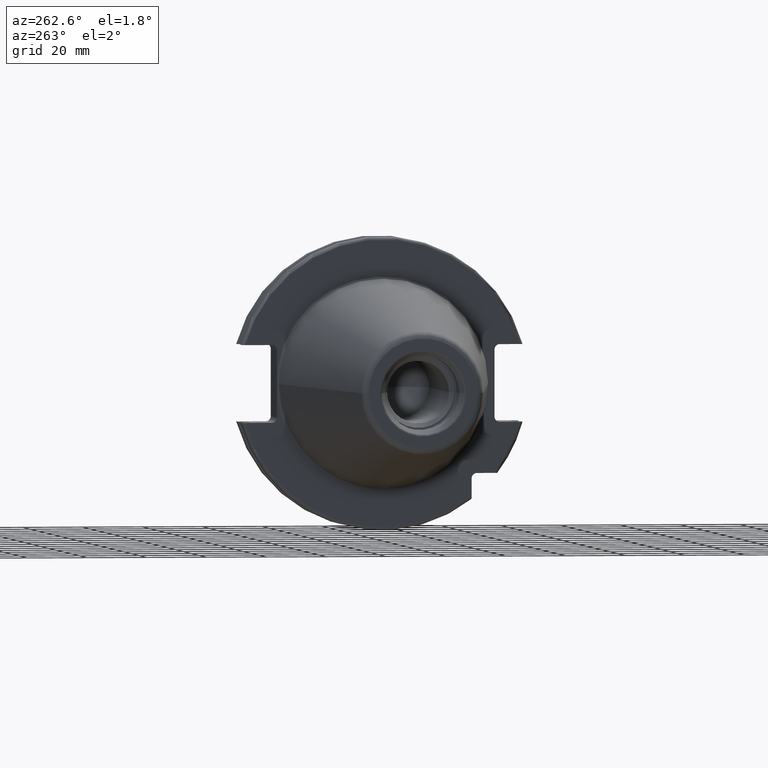
[diagram: clean part render]
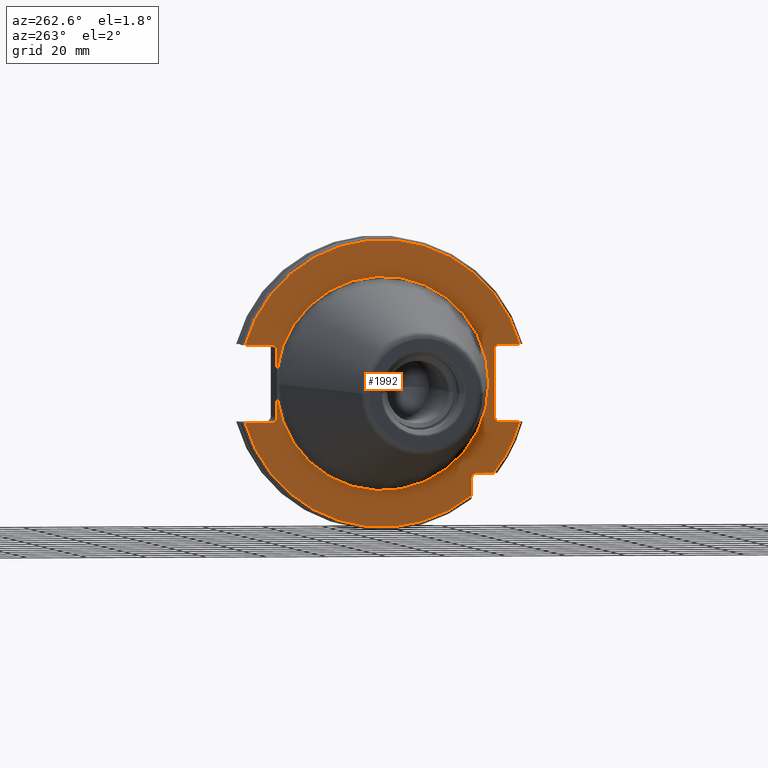
[diagram: same view with one face highlighted and labeled with its STEP entity id]
A machine part, auxiliary view. The second image highlights one B-rep face of the part: STEP entity #1992.
In plain terms, the highlighted planar face has unit normal (1, 0, 0).
Its self-contained STEP definition (entity closure, byte-faithful):
#105=CARTESIAN_POINT('',(3.2E0,3.53E1,-4.414818795828E0));
#117=CARTESIAN_POINT('',(3.2E0,0.E0,0.E0));
#118=DIRECTION('',(-1.E0,0.E0,0.E0));
#119=DIRECTION('',(0.E0,9.922698524245E-1,-1.240989120402E-1));
#120=AXIS2_PLACEMENT_3D('',#117,#118,#119);
#135=CARTESIAN_POINT('',(3.2E0,3.705E1,1.115E1));
#136=DIRECTION('',(1.E0,0.E0,0.E0));
#137=DIRECTION('',(0.E0,0.E0,1.E0));
#138=AXIS2_PLACEMENT_3D('',#135,#136,#137);
#195=CARTESIAN_POINT('',(3.2E0,-3.925E1,-1.115E1));
#196=DIRECTION('',(1.E0,0.E0,0.E0));
#197=DIRECTION('',(0.E0,0.E0,-1.E0));
#198=AXIS2_PLACEMENT_3D('',#195,#196,#197);
#266=CARTESIAN_POINT('',(3.2E0,3.705E1,-1.115E1));
#267=DIRECTION('',(1.E0,0.E0,0.E0));
#268=DIRECTION('',(0.E0,-1.E0,0.E0));
#269=AXIS2_PLACEMENT_3D('',#266,#267,#268);
#271=DIRECTION('',(0.E0,1.E0,0.E0));
#272=VECTOR('',#271,6.711493733886E0);
#273=CARTESIAN_POINT('',(3.2E0,-4.596149373389E1,1.29E1));
#274=LINE('',#273,#272);
#275=DIRECTION('',(0.E0,0.E0,1.E0));
#276=VECTOR('',#275,2.23E1);
#277=CARTESIAN_POINT('',(3.2E0,-3.75E1,-1.115E1));
#278=LINE('',#277,#276);
#279=DIRECTION('',(0.E0,1.E0,0.E0));
#280=VECTOR('',#279,6.711493733886E0);
#281=CARTESIAN_POINT('',(3.2E0,-4.596149373389E1,-1.29E1));
#282=LINE('',#281,#280);
#283=CARTESIAN_POINT('',(3.2E0,0.E0,0.E0));
#284=DIRECTION('',(-1.E0,0.E0,0.E0));
#285=DIRECTION('',(0.E0,-7.803888060170E-1,-6.252945797329E-1));
#286=AXIS2_PLACEMENT_3D('',#283,#284,#285);
#288=DIRECTION('',(0.E0,-1.E0,0.E0));
#289=VECTOR('',#288,5.653810627237E0);
#290=CARTESIAN_POINT('',(3.2E0,-3.16E1,-2.985E1));
#291=LINE('',#290,#289);
#292=DIRECTION('',(0.E0,0.E0,1.E0));
#293=VECTOR('',#292,5.653810627237E0);
#294=CARTESIAN_POINT('',(3.2E0,-2.985E1,-3.725381062724E1));
#295=LINE('',#294,#293);
#296=CARTESIAN_POINT('',(3.2E0,0.E0,0.E0));
#297=DIRECTION('',(-1.E0,0.E0,0.E0));
#298=DIRECTION('',(0.E0,9.627964123359E-1,-2.702278083268E-1));
#299=AXIS2_PLACEMENT_3D('',#296,#297,#298);
#301=DIRECTION('',(0.E0,-1.E0,0.E0));
#302=VECTOR('',#301,8.911493733886E0);
#303=CARTESIAN_POINT('',(3.2E0,4.596149373389E1,-1.29E1));
#304=LINE('',#303,#302);
#305=DIRECTION('',(0.E0,0.E0,-1.E0));
#306=VECTOR('',#305,6.735181204172E0);
#307=CARTESIAN_POINT('',(3.2E0,3.53E1,-4.414818795828E0));
#308=LINE('',#307,#306);
#309=DIRECTION('',(0.E0,0.E0,-1.E0));
#310=VECTOR('',#309,6.735181204172E0);
#311=CARTESIAN_POINT('',(3.2E0,3.53E1,1.115E1));
#312=LINE('',#311,#310);
#313=DIRECTION('',(0.E0,-1.E0,0.E0));
#314=VECTOR('',#313,8.911493733886E0);
#315=CARTESIAN_POINT('',(3.2E0,4.596149373389E1,1.29E1));
#316=LINE('',#315,#314);
#317=CARTESIAN_POINT('',(3.2E0,0.E0,0.E0));
#318=DIRECTION('',(1.E0,0.E0,0.E0));
#319=DIRECTION('',(0.E0,9.627964123359E-1,2.702278083268E-1));
#320=AXIS2_PLACEMENT_3D('',#317,#318,#319);
#331=CARTESIAN_POINT('',(3.2E0,-3.925E1,1.115E1));
#332=DIRECTION('',(1.E0,0.E0,0.E0));
#333=DIRECTION('',(0.E0,1.E0,0.E0));
#334=AXIS2_PLACEMENT_3D('',#331,#332,#333);
#345=CARTESIAN_POINT('',(3.2E0,4.596149373389E1,1.29E1));
#352=CARTESIAN_POINT('',(3.2E0,-4.596149373389E1,1.29E1));
#746=CARTESIAN_POINT('',(3.2E0,-3.16E1,-3.16E1));
#747=DIRECTION('',(1.E0,0.E0,0.E0));
#748=DIRECTION('',(0.E0,1.E0,0.E0));
#749=AXIS2_PLACEMENT_3D('',#746,#747,#748);
#755=CARTESIAN_POINT('',(3.2E0,4.596149373389E1,-1.29E1));
#790=CARTESIAN_POINT('',(3.2E0,-4.596149373389E1,-1.29E1));
#797=CARTESIAN_POINT('',(3.2E0,-3.725381062724E1,-2.985E1));
#936=CARTESIAN_POINT('',(3.2E0,3.53E1,4.414818795828E0));
#947=CARTESIAN_POINT('',(3.2E0,0.E0,0.E0));
#948=DIRECTION('',(1.E0,0.E0,0.E0));
#949=DIRECTION('',(0.E0,9.922698524245E-1,1.240989120402E-1));
#950=AXIS2_PLACEMENT_3D('',#947,#948,#949);
#1330=CARTESIAN_POINT('',(3.2E0,-3.5575E1,0.E0));
#1332=VERTEX_POINT('',#1330);
#1456=VERTEX_POINT('',#936);
#1458=VERTEX_POINT('',#105);
#1461=VERTEX_POINT('',#345);
#1462=VERTEX_POINT('',#352);
#1465=VERTEX_POINT('',#755);
#1466=VERTEX_POINT('',#790);
#1489=CARTESIAN_POINT('',(3.2E0,-2.985E1,-3.725381062724E1));
#1490=VERTEX_POINT('',#1489);
#1492=CARTESIAN_POINT('',(3.2E0,-3.75E1,-1.115E1));
#1494=VERTEX_POINT('',#1492);
#1496=CARTESIAN_POINT('',(3.2E0,-3.925E1,-1.29E1));
#1498=VERTEX_POINT('',#1496);
#1500=CARTESIAN_POINT('',(3.2E0,-3.925E1,1.29E1));
#1502=VERTEX_POINT('',#1500);
#1504=CARTESIAN_POINT('',(3.2E0,-3.75E1,1.115E1));
#1506=VERTEX_POINT('',#1504);
#1508=CARTESIAN_POINT('',(3.2E0,3.53E1,1.115E1));
#1510=VERTEX_POINT('',#1508);
#1512=CARTESIAN_POINT('',(3.2E0,3.705E1,1.29E1));
#1514=VERTEX_POINT('',#1512);
#1516=CARTESIAN_POINT('',(3.2E0,3.705E1,-1.29E1));
#1518=VERTEX_POINT('',#1516);
#1520=CARTESIAN_POINT('',(3.2E0,3.53E1,-1.115E1));
#1522=VERTEX_POINT('',#1520);
#1527=CARTESIAN_POINT('',(3.2E0,-2.985E1,-3.16E1));
#1528=CARTESIAN_POINT('',(3.2E0,-3.16E1,-2.985E1));
#1529=VERTEX_POINT('',#1527);
#1530=VERTEX_POINT('',#1528);
#1589=VERTEX_POINT('',#797);
#1956=CARTESIAN_POINT('',(3.2E0,0.E0,0.E0));
#1957=DIRECTION('',(1.E0,0.E0,0.E0));
#1958=DIRECTION('',(0.E0,-1.E0,0.E0));
#1959=AXIS2_PLACEMENT_3D('',#1956,#1957,#1958);
#1960=PLANE('',#1959);
#1962=ORIENTED_EDGE('',*,*,#1961,.T.);
#1964=ORIENTED_EDGE('',*,*,#1963,.F.);
#1965=ORIENTED_EDGE('',*,*,#1824,.F.);
#1966=ORIENTED_EDGE('',*,*,#1841,.F.);
#1967=ORIENTED_EDGE('',*,*,#1875,.F.);
#1969=ORIENTED_EDGE('',*,*,#1968,.F.);
#1971=ORIENTED_EDGE('',*,*,#1970,.F.);
#1973=ORIENTED_EDGE('',*,*,#1972,.F.);
#1975=ORIENTED_EDGE('',*,*,#1974,.F.);
#1977=ORIENTED_EDGE('',*,*,#1976,.F.);
#1978=ORIENTED_EDGE('',*,*,#1916,.T.);
#1979=ORIENTED_EDGE('',*,*,#1951,.F.);
#1980=ORIENTED_EDGE('',*,*,#1749,.F.);
#1981=ORIENTED_EDGE('',*,*,#1732,.T.);
#1983=ORIENTED_EDGE('',*,*,#1982,.F.);
#1984=ORIENTED_EDGE('',*,*,#1744,.F.);
#1985=ORIENTED_EDGE('',*,*,#1768,.F.);
#1987=ORIENTED_EDGE('',*,*,#1986,.F.);
#1989=ORIENTED_EDGE('',*,*,#1988,.T.);
#1990=EDGE_LOOP('',(#1962,#1964,#1965,#1966,#1967,#1969,#1971,#1973,#1975,#1977,
#1978,#1979,#1980,#1981,#1983,#1984,#1985,#1987,#1989));
#1991=FACE_OUTER_BOUND('',#1990,.F.);
#1992=ADVANCED_FACE('',(#1991),#1960,.F.);
#121=CIRCLE('',#120,3.5575E1);
#139=CIRCLE('',#138,1.75E0);
#199=CIRCLE('',#198,1.75E0);
#270=CIRCLE('',#269,1.75E0);
#287=CIRCLE('',#286,4.77375E1);
#300=CIRCLE('',#299,4.77375E1);
#321=CIRCLE('',#320,4.77375E1);
#335=CIRCLE('',#334,1.75E0);
#750=CIRCLE('',#749,1.75E0);
#951=CIRCLE('',#950,3.5575E1);
#1732=EDGE_CURVE('',#1458,#1332,#121,.T.);
#1744=EDGE_CURVE('',#1510,#1456,#312,.T.);
#1749=EDGE_CURVE('',#1458,#1522,#308,.T.);
#1768=EDGE_CURVE('',#1514,#1510,#139,.T.);
#1824=EDGE_CURVE('',#1494,#1506,#278,.T.);
#1841=EDGE_CURVE('',#1498,#1494,#199,.T.);
#1875=EDGE_CURVE('',#1466,#1498,#282,.T.);
#1916=EDGE_CURVE('',#1465,#1518,#304,.T.);
#1951=EDGE_CURVE('',#1522,#1518,#270,.T.);
#1961=EDGE_CURVE('',#1462,#1502,#274,.T.);
#1963=EDGE_CURVE('',#1506,#1502,#335,.T.);
#1968=EDGE_CURVE('',#1589,#1466,#287,.T.);
#1970=EDGE_CURVE('',#1530,#1589,#291,.T.);
#1972=EDGE_CURVE('',#1529,#1530,#750,.T.);
#1974=EDGE_CURVE('',#1490,#1529,#295,.T.);
#1976=EDGE_CURVE('',#1465,#1490,#300,.T.);
#1982=EDGE_CURVE('',#1456,#1332,#951,.T.);
#1986=EDGE_CURVE('',#1461,#1514,#316,.T.);
#1988=EDGE_CURVE('',#1461,#1462,#321,.T.);